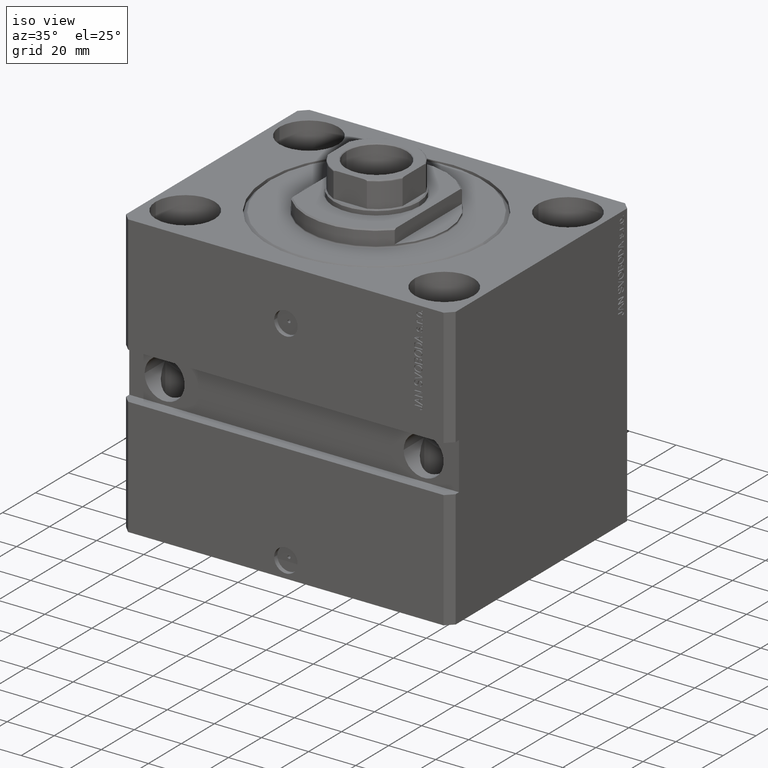
[diagram: clean part render]
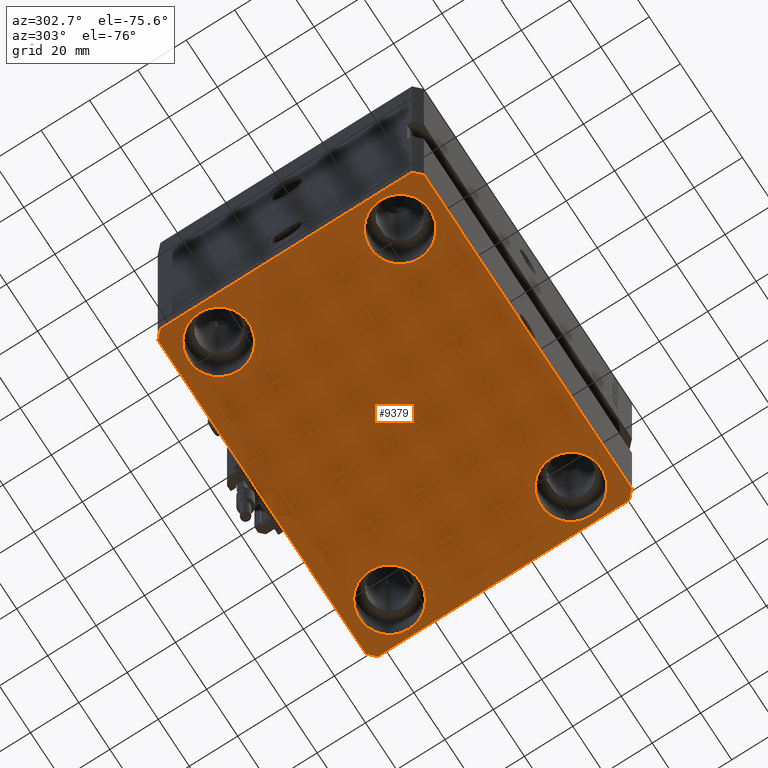
[diagram: tour spotlight — one face highlighted and labeled with its STEP entity id]
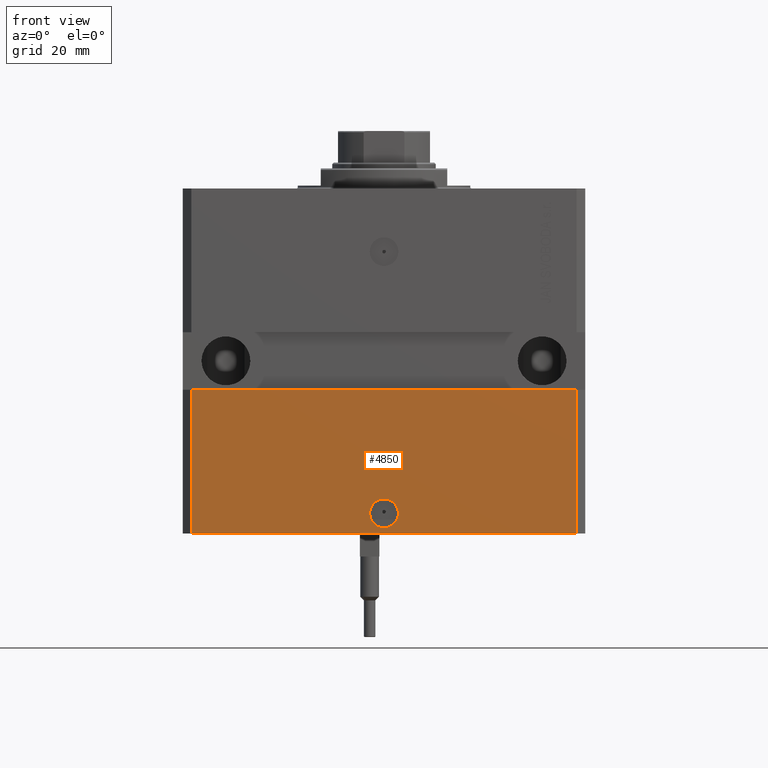
[diagram: tour spotlight — one face highlighted and labeled with its STEP entity id]
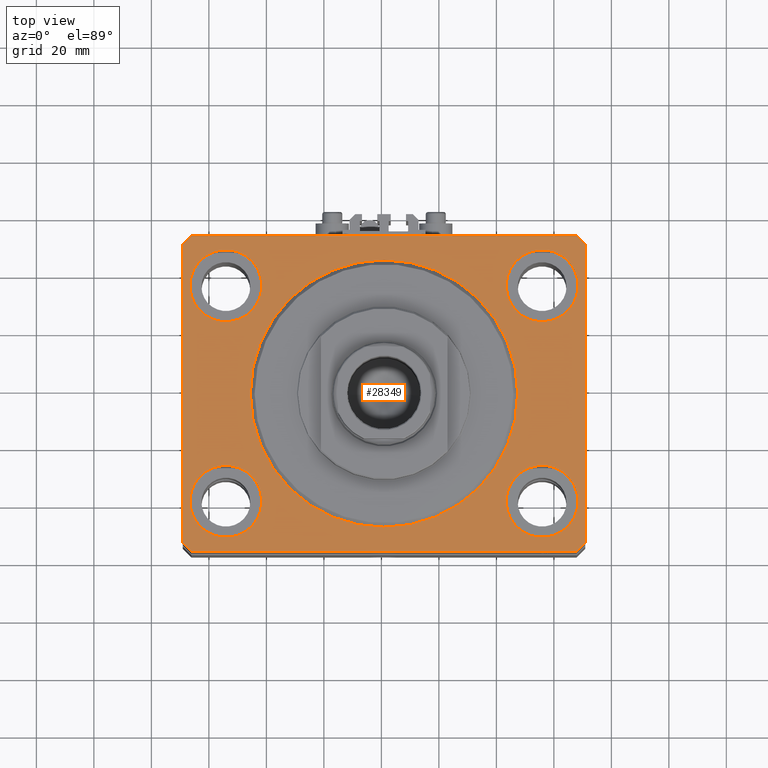
[diagram: tour spotlight — one face highlighted and labeled with its STEP entity id]
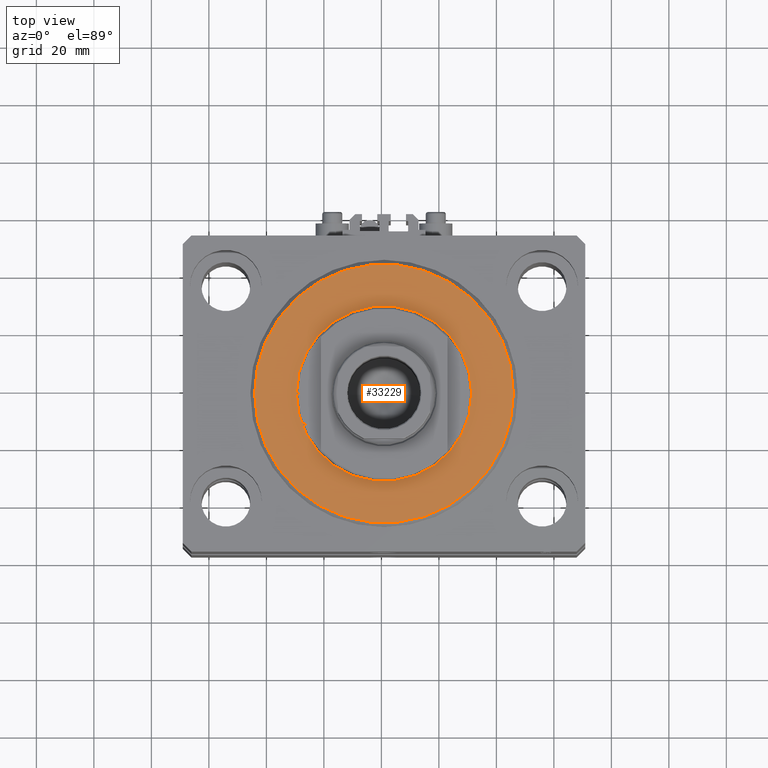
[diagram: tour spotlight — one face highlighted and labeled with its STEP entity id]
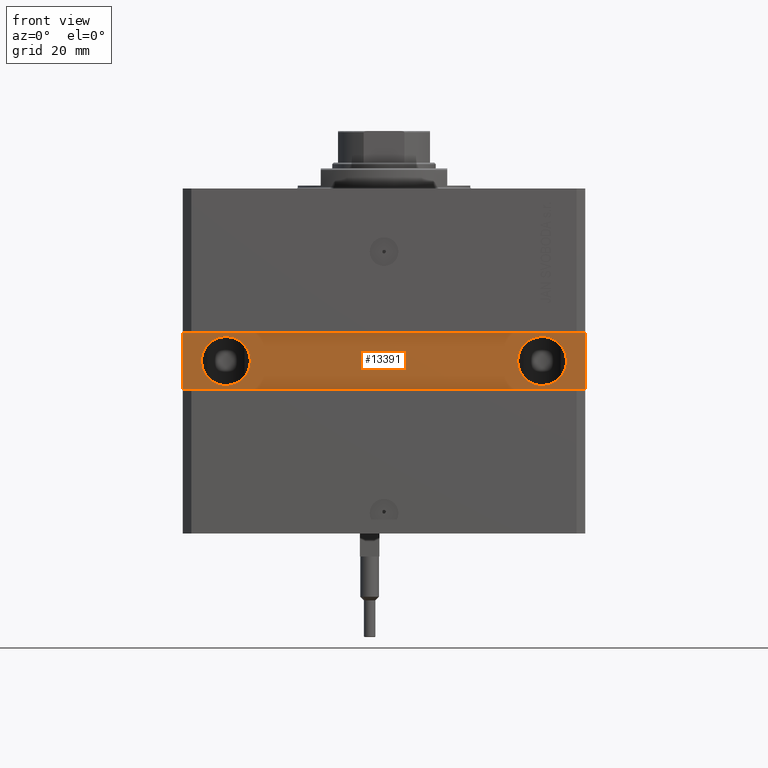
[diagram: tour spotlight — one face highlighted and labeled with its STEP entity id]
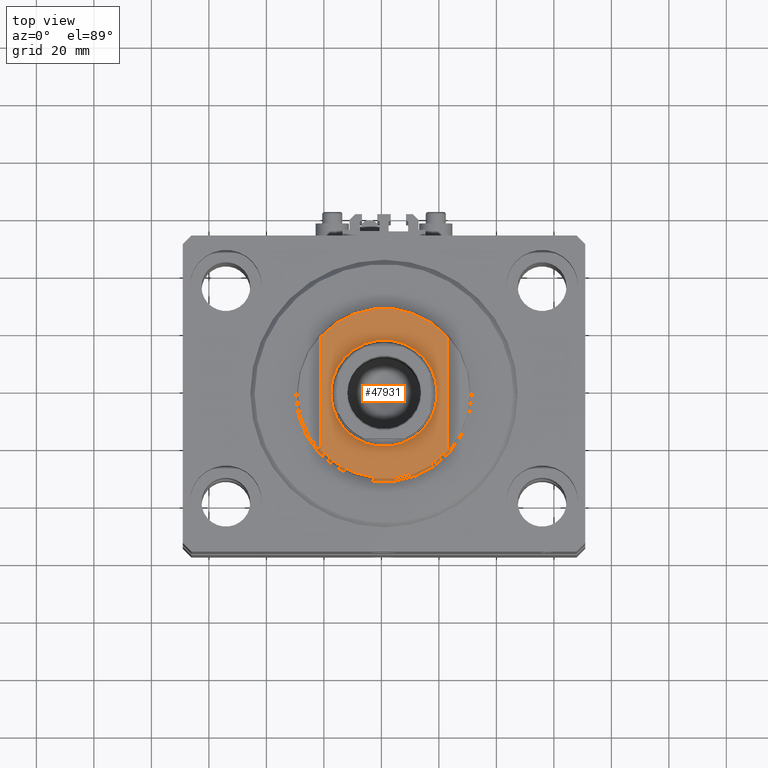
[diagram: tour spotlight — one face highlighted and labeled with its STEP entity id]
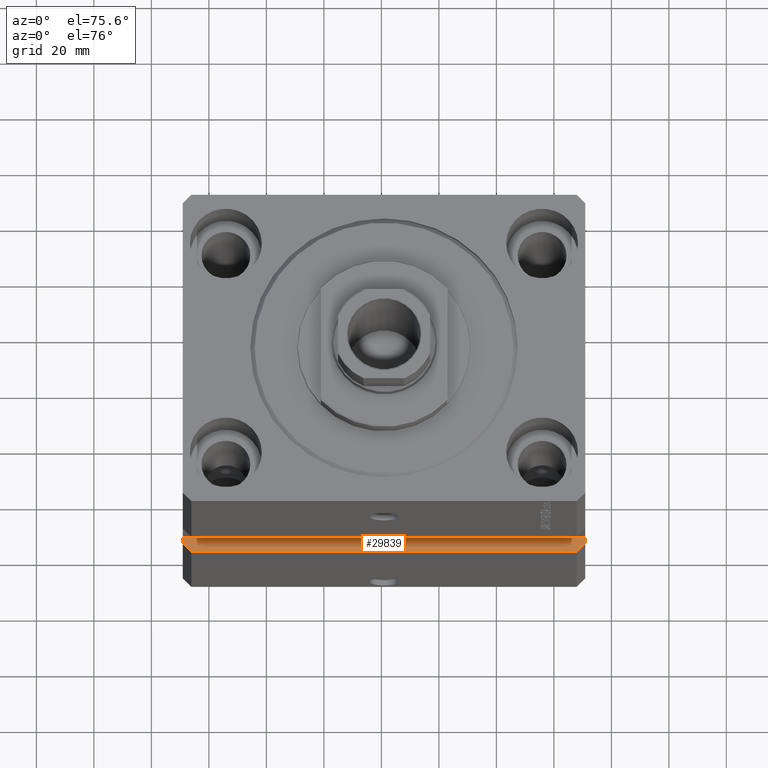
[diagram: tour spotlight — one face highlighted and labeled with its STEP entity id]
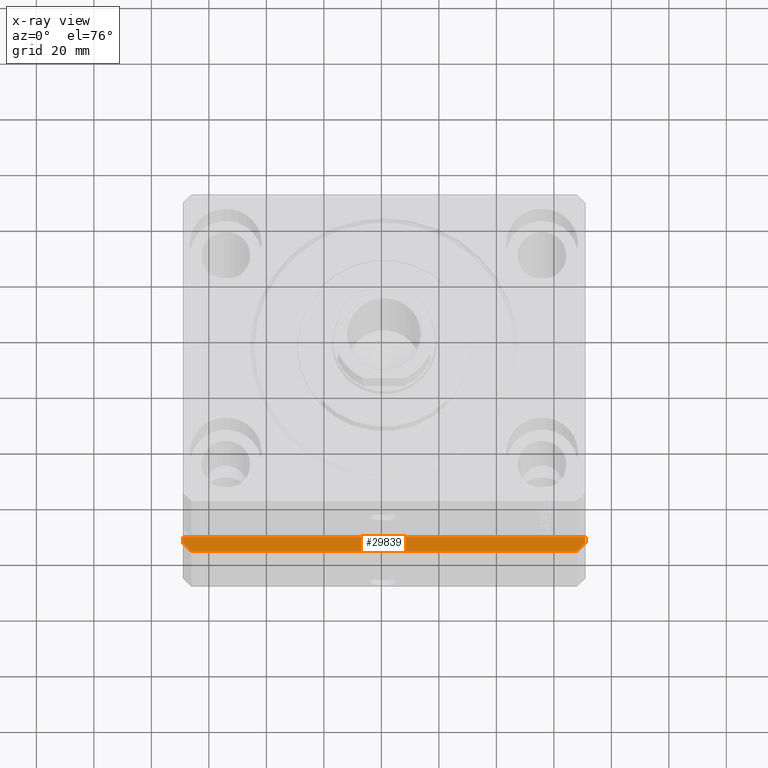
[diagram: x-ray of the same camera — body ghosted, this tour face saturated]
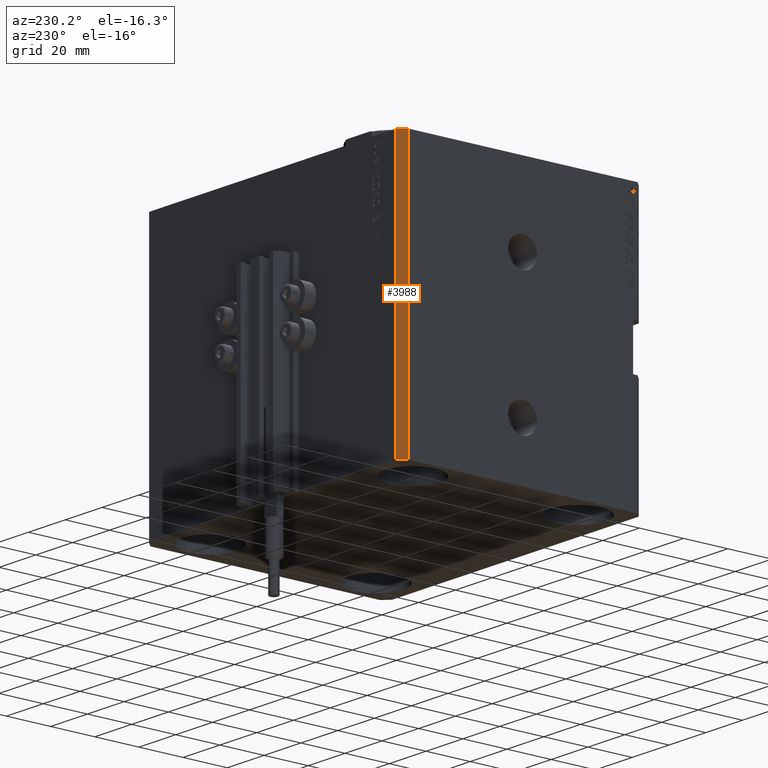
[diagram: tour spotlight — one face highlighted and labeled with its STEP entity id]
A machine part: a face-by-face anatomy tour. The part has 1138 B-rep faces; the first image is the clean iso view, then the 8 largest visible faces are spotlighted one at a time (largest first), each with its STEP entity span.

Face 1 — auxiliary view, entity #9379. In plain terms, the highlighted planar face has unit normal (0, 0, 1).
Definition (entity closure, byte-faithful):
#172 = VECTOR ( 'NONE', #4868, 1000.000000000000114 ) ;
#248 = VERTEX_POINT ( 'NONE', #38725 ) ;
#408 = CARTESIAN_POINT ( 'NONE',  ( 70.00000000000056843, 51.99999999999996447, -120.0000000000000000 ) ) ;
#583 = CARTESIAN_POINT ( 'NONE',  ( -42.50000000000000711, -37.50000000000000711, -120.0000000000000000 ) ) ;
#898 = EDGE_LOOP ( 'NONE', ( #24883, #37441 ) ) ;
#1275 = CARTESIAN_POINT ( 'NONE',  ( -55.00000000000000711, -37.50000000000000711, -120.0000000000000000 ) ) ;
#1327 = AXIS2_PLACEMENT_3D ( 'NONE', #7550, #48682, #45896 ) ;
#1644 = CARTESIAN_POINT ( 'NONE',  ( -67.00000000000001421, -55.00000000000000000, -120.0000000000000000 ) ) ;
#1961 = DIRECTION ( 'NONE',  ( -0.000000000000000000, -0.000000000000000000, 1.000000000000000000 ) ) ;
#2593 = CIRCLE ( 'NONE', #39380, 12.49999999999999645 ) ;
#2693 = VERTEX_POINT ( 'NONE', #24483 ) ;
#3983 = DIRECTION ( 'NONE',  ( -0.000000000000000000, -0.000000000000000000, 1.000000000000000000 ) ) ;
#4868 = DIRECTION ( 'NONE',  ( -0.7071067811865451302, -0.7071067811865500152, 0.000000000000000000 ) ) ;
#4926 = EDGE_CURVE ( 'NONE', #39058, #13992, #36019, .T. ) ;
#5418 = DIRECTION ( 'NONE',  ( 1.000000000000000000, 1.553483709829976241E-16, 0.000000000000000000 ) ) ;
#5425 = CARTESIAN_POINT ( 'NONE',  ( 67.50000000000000000, -37.50000000000000711, -120.0000000000000000 ) ) ;
#5796 = ORIENTED_EDGE ( 'NONE', *, *, #40280, .F. ) ;
#6026 = CARTESIAN_POINT ( 'NONE',  ( 0.000000000000000000, 0.000000000000000000, -120.0000000000000000 ) ) ;
#6046 = CARTESIAN_POINT ( 'NONE',  ( -69.99999999999998579, 51.99999999999999289, -120.0000000000000000 ) ) ;
#6052 = LINE ( 'NONE', #44413, #42191 ) ;
#6106 = AXIS2_PLACEMENT_3D ( 'NONE', #32794, #1961, #17240 ) ;
#6280 = DIRECTION ( 'NONE',  ( 1.000000000000000000, 0.000000000000000000, -0.000000000000000000 ) ) ;
#6496 = CARTESIAN_POINT ( 'NONE',  ( 70.00000000000000000, -51.99999999999999289, -120.0000000000000000 ) ) ;
#7409 = LINE ( 'NONE', #22685, #37923 ) ;
#7550 = CARTESIAN_POINT ( 'NONE',  ( -55.00000000000000711, 37.49999999999999289, -120.0000000000000000 ) ) ;
#7582 = CARTESIAN_POINT ( 'NONE',  ( 67.00000000000001421, -54.99999999999997868, -120.0000000000000000 ) ) ;
#8060 = VERTEX_POINT ( 'NONE', #47550 ) ;
#8421 = ORIENTED_EDGE ( 'NONE', *, *, #34640, .F. ) ;
#9246 = CIRCLE ( 'NONE', #45280, 12.49999999999999645 ) ;
#9279 = DIRECTION ( 'NONE',  ( 0.000000000000000000, 0.000000000000000000, 1.000000000000000000 ) ) ;
#9379 = ADVANCED_FACE ( 'NONE', ( #24576, #36603, #24813, #40100, #43642 ), #40354, .F. ) ;
#9786 = VECTOR ( 'NONE', #26463, 1000.000000000000000 ) ;
#9812 = DIRECTION ( 'NONE',  ( 1.000000000000000000, 0.000000000000000000, 0.000000000000000000 ) ) ;
#10145 = EDGE_CURVE ( 'NONE', #30268, #25835, #2593, .T. ) ;
#10293 = CARTESIAN_POINT ( 'NONE',  ( -55.00000000000000711, -37.50000000000000711, -120.0000000000000000 ) ) ;
#10642 = LINE ( 'NONE', #18649, #45106 ) ;
#10853 = VERTEX_POINT ( 'NONE', #5425 ) ;
#11026 = EDGE_CURVE ( 'NONE', #32988, #15786, #41262, .T. ) ;
#11245 = CARTESIAN_POINT ( 'NONE',  ( -55.00000000000000711, 37.49999999999999289, -120.0000000000000000 ) ) ;
#11494 = EDGE_CURVE ( 'NONE', #25751, #248, #10642, .T. ) ;
#11525 = ORIENTED_EDGE ( 'NONE', *, *, #36607, .T. ) ;
#12206 = AXIS2_PLACEMENT_3D ( 'NONE', #35395, #44173, #9812 ) ;
#12223 = DIRECTION ( 'NONE',  ( 1.000000000000000000, 0.000000000000000000, 0.000000000000000000 ) ) ;
#12802 = CIRCLE ( 'NONE', #33638, 12.49999999999999645 ) ;
#13457 = EDGE_CURVE ( 'NONE', #248, #24197, #21178, .T. ) ;
#13781 = EDGE_CURVE ( 'NONE', #25835, #30268, #14701, .T. ) ;
#13992 = VERTEX_POINT ( 'NONE', #19734 ) ;
#14250 = LINE ( 'NONE', #6496, #35761 ) ;
#14297 = DIRECTION ( 'NONE',  ( 1.000000000000000000, 0.000000000000000000, 0.000000000000000000 ) ) ;
#14701 = CIRCLE ( 'NONE', #48348, 12.49999999999999645 ) ;
#14796 = DIRECTION ( 'NONE',  ( 1.000000000000000000, 0.000000000000000000, 0.000000000000000000 ) ) ;
#15499 = EDGE_LOOP ( 'NONE', ( #46422, #11525 ) ) ;
#15786 = VERTEX_POINT ( 'NONE', #30316 ) ;
#15873 = CARTESIAN_POINT ( 'NONE',  ( 42.50000000000000711, 37.50000000000002132, -120.0000000000000000 ) ) ;
#15983 = DIRECTION ( 'NONE',  ( -0.000000000000000000, -0.000000000000000000, 1.000000000000000000 ) ) ;
#16832 = EDGE_CURVE ( 'NONE', #34563, #25751, #7409, .T. ) ;
#17240 = DIRECTION ( 'NONE',  ( 1.000000000000000000, 0.000000000000000000, 0.000000000000000000 ) ) ;
#17319 = DIRECTION ( 'NONE',  ( -1.000000000000000000, -1.553483709829969339E-16, 0.000000000000000000 ) ) ;
#17641 = VERTEX_POINT ( 'NONE', #18198 ) ;
#17884 = VECTOR ( 'NONE', #5418, 1000.000000000000000 ) ;
#18198 = CARTESIAN_POINT ( 'NONE',  ( 70.00000000000000000, -51.99999999999999289, -120.0000000000000000 ) ) ;
#18360 = CARTESIAN_POINT ( 'NONE',  ( 67.00000000000001421, -54.99999999999997868, -120.0000000000000000 ) ) ;
#18373 = EDGE_LOOP ( 'NONE', ( #43016, #27181 ) ) ;
#18649 = CARTESIAN_POINT ( 'NONE',  ( -70.00000000000001421, -51.99999999999999289, -120.0000000000000000 ) ) ;
#18826 = CARTESIAN_POINT ( 'NONE',  ( -42.50000000000000711, 37.49999999999999289, -120.0000000000000000 ) ) ;
#19100 = CARTESIAN_POINT ( 'NONE',  ( -67.50000000000000000, -37.50000000000000711, -120.0000000000000000 ) ) ;
#19605 = ORIENTED_EDGE ( 'NONE', *, *, #13457, .F. ) ;
#19734 = CARTESIAN_POINT ( 'NONE',  ( 67.50000000000000000, 37.50000000000002132, -120.0000000000000000 ) ) ;
#21178 = LINE ( 'NONE', #1644, #17884 ) ;
#21199 = EDGE_CURVE ( 'NONE', #29407, #46876, #9246, .T. ) ;
#22685 = CARTESIAN_POINT ( 'NONE',  ( -69.99999999999998579, 51.99999999999999289, -120.0000000000000000 ) ) ;
#22800 = CARTESIAN_POINT ( 'NONE',  ( -67.50000000000000000, 37.49999999999999289, -120.0000000000000000 ) ) ;
#23579 = EDGE_CURVE ( 'NONE', #8060, #10853, #45382, .T. ) ;
#24088 = DIRECTION ( 'NONE',  ( -0.000000000000000000, -0.000000000000000000, 1.000000000000000000 ) ) ;
#24197 = VERTEX_POINT ( 'NONE', #18360 ) ;
#24333 = EDGE_CURVE ( 'NONE', #17641, #32988, #14250, .T. ) ;
#24368 = ORIENTED_EDGE ( 'NONE', *, *, #16832, .F. ) ;
#24483 = CARTESIAN_POINT ( 'NONE',  ( -67.00000000000000000, 55.00000000000000000, -120.0000000000000000 ) ) ;
#24576 = FACE_BOUND ( 'NONE', #18373, .T. ) ;
#24813 = FACE_BOUND ( 'NONE', #15499, .T. ) ;
#24824 = DIRECTION ( 'NONE',  ( -0.000000000000000000, -0.000000000000000000, 1.000000000000000000 ) ) ;
#24883 = ORIENTED_EDGE ( 'NONE', *, *, #21199, .T. ) ;
#25133 = EDGE_CURVE ( 'NONE', #15786, #2693, #6052, .T. ) ;
#25349 = CIRCLE ( 'NONE', #1327, 12.49999999999999645 ) ;
#25751 = VERTEX_POINT ( 'NONE', #37464 ) ;
#25835 = VERTEX_POINT ( 'NONE', #583 ) ;
#26463 = DIRECTION ( 'NONE',  ( -0.7071067811865344721, 0.7071067811865606734, 0.000000000000000000 ) ) ;
#26547 = DIRECTION ( 'NONE',  ( 1.000000000000000000, 0.000000000000000000, 0.000000000000000000 ) ) ;
#27181 = ORIENTED_EDGE ( 'NONE', *, *, #13781, .T. ) ;
#28208 = ORIENTED_EDGE ( 'NONE', *, *, #25133, .F. ) ;
#29152 = VECTOR ( 'NONE', #41183, 1000.000000000000114 ) ;
#29407 = VERTEX_POINT ( 'NONE', #22800 ) ;
#29824 = EDGE_LOOP ( 'NONE', ( #28208, #39431, #44705, #5796, #19605, #36669, #24368, #8421 ) ) ;
#29882 = CIRCLE ( 'NONE', #12206, 12.49999999999999645 ) ;
#30268 = VERTEX_POINT ( 'NONE', #19100 ) ;
#30316 = CARTESIAN_POINT ( 'NONE',  ( 67.00000000000061107, 55.00000000000002132, -120.0000000000000000 ) ) ;
#30570 = EDGE_CURVE ( 'NONE', #10853, #8060, #12802, .T. ) ;
#31442 = CARTESIAN_POINT ( 'NONE',  ( -67.00000000000000000, 55.00000000000000000, -120.0000000000000000 ) ) ;
#32121 = AXIS2_PLACEMENT_3D ( 'NONE', #6026, #9279, #6280 ) ;
#32794 = CARTESIAN_POINT ( 'NONE',  ( 55.00000000000000711, -37.50000000000000711, -120.0000000000000000 ) ) ;
#32845 = AXIS2_PLACEMENT_3D ( 'NONE', #35054, #15983, #12223 ) ;
#32988 = VERTEX_POINT ( 'NONE', #408 ) ;
#33638 = AXIS2_PLACEMENT_3D ( 'NONE', #37118, #24824, #14297 ) ;
#33658 = LINE ( 'NONE', #7582, #29152 ) ;
#33737 = CARTESIAN_POINT ( 'NONE',  ( 70.00000000000056843, 51.99999999999996447, -120.0000000000000000 ) ) ;
#33956 = DIRECTION ( 'NONE',  ( 0.7071067811865466846, -0.7071067811865483499, 0.000000000000000000 ) ) ;
#34229 = DIRECTION ( 'NONE',  ( -2.668805347656626678E-16, -1.000000000000000000, 0.000000000000000000 ) ) ;
#34563 = VERTEX_POINT ( 'NONE', #6046 ) ;
#34640 = EDGE_CURVE ( 'NONE', #2693, #34563, #35194, .T. ) ;
#34884 = DIRECTION ( 'NONE',  ( 1.000000000000000000, 0.000000000000000000, 0.000000000000000000 ) ) ;
#35054 = CARTESIAN_POINT ( 'NONE',  ( 55.00000000000000711, 37.50000000000002132, -120.0000000000000000 ) ) ;
#35166 = EDGE_LOOP ( 'NONE', ( #47469, #47267 ) ) ;
#35194 = LINE ( 'NONE', #31442, #172 ) ;
#35395 = CARTESIAN_POINT ( 'NONE',  ( 55.00000000000000711, 37.50000000000002132, -120.0000000000000000 ) ) ;
#35761 = VECTOR ( 'NONE', #48092, 1000.000000000000000 ) ;
#36019 = CIRCLE ( 'NONE', #32845, 12.49999999999999645 ) ;
#36603 = FACE_BOUND ( 'NONE', #35166, .T. ) ;
#36607 = EDGE_CURVE ( 'NONE', #13992, #39058, #29882, .T. ) ;
#36669 = ORIENTED_EDGE ( 'NONE', *, *, #11494, .F. ) ;
#37118 = CARTESIAN_POINT ( 'NONE',  ( 55.00000000000000711, -37.50000000000000711, -120.0000000000000000 ) ) ;
#37441 = ORIENTED_EDGE ( 'NONE', *, *, #49473, .T. ) ;
#37464 = CARTESIAN_POINT ( 'NONE',  ( -70.00000000000001421, -51.99999999999999289, -120.0000000000000000 ) ) ;
#37923 = VECTOR ( 'NONE', #34229, 1000.000000000000000 ) ;
#38725 = CARTESIAN_POINT ( 'NONE',  ( -67.00000000000001421, -55.00000000000000000, -120.0000000000000000 ) ) ;
#39058 = VERTEX_POINT ( 'NONE', #15873 ) ;
#39380 = AXIS2_PLACEMENT_3D ( 'NONE', #1275, #24088, #34884 ) ;
#39431 = ORIENTED_EDGE ( 'NONE', *, *, #11026, .F. ) ;
#40100 = FACE_BOUND ( 'NONE', #898, .T. ) ;
#40280 = EDGE_CURVE ( 'NONE', #24197, #17641, #33658, .T. ) ;
#40354 = PLANE ( 'NONE',  #32121 ) ;
#41183 = DIRECTION ( 'NONE',  ( 0.7071067811865474617, 0.7071067811865474617, 0.000000000000000000 ) ) ;
#41262 = LINE ( 'NONE', #33737, #9786 ) ;
#42191 = VECTOR ( 'NONE', #17319, 1000.000000000000000 ) ;
#43016 = ORIENTED_EDGE ( 'NONE', *, *, #10145, .T. ) ;
#43642 = FACE_OUTER_BOUND ( 'NONE', #29824, .T. ) ;
#44173 = DIRECTION ( 'NONE',  ( -0.000000000000000000, -0.000000000000000000, 1.000000000000000000 ) ) ;
#44413 = CARTESIAN_POINT ( 'NONE',  ( 67.00000000000061107, 55.00000000000002132, -120.0000000000000000 ) ) ;
#44705 = ORIENTED_EDGE ( 'NONE', *, *, #24333, .F. ) ;
#45106 = VECTOR ( 'NONE', #33956, 1000.000000000000000 ) ;
#45280 = AXIS2_PLACEMENT_3D ( 'NONE', #11245, #3983, #26547 ) ;
#45382 = CIRCLE ( 'NONE', #6106, 12.49999999999999645 ) ;
#45896 = DIRECTION ( 'NONE',  ( 1.000000000000000000, 0.000000000000000000, 0.000000000000000000 ) ) ;
#46422 = ORIENTED_EDGE ( 'NONE', *, *, #4926, .T. ) ;
#46876 = VERTEX_POINT ( 'NONE', #18826 ) ;
#47267 = ORIENTED_EDGE ( 'NONE', *, *, #30570, .T. ) ;
#47469 = ORIENTED_EDGE ( 'NONE', *, *, #23579, .T. ) ;
#47550 = CARTESIAN_POINT ( 'NONE',  ( 42.50000000000000711, -37.50000000000000711, -120.0000000000000000 ) ) ;
#48092 = DIRECTION ( 'NONE',  ( 5.337610695313255329E-15, 1.000000000000000000, 0.000000000000000000 ) ) ;
#48348 = AXIS2_PLACEMENT_3D ( 'NONE', #10293, #49158, #14796 ) ;
#48682 = DIRECTION ( 'NONE',  ( -0.000000000000000000, -0.000000000000000000, 1.000000000000000000 ) ) ;
#49158 = DIRECTION ( 'NONE',  ( -0.000000000000000000, -0.000000000000000000, 1.000000000000000000 ) ) ;
#49473 = EDGE_CURVE ( 'NONE', #46876, #29407, #25349, .T. ) ;

Face 2 — front view, entity #4850. In plain terms, the highlighted planar face has unit normal (0, -1, 0).
Definition (entity closure, byte-faithful):
#248 = VERTEX_POINT ( 'NONE', #38725 ) ;
#870 = CIRCLE ( 'NONE', #19300, 5.000000000000006217 ) ;
#1644 = CARTESIAN_POINT ( 'NONE',  ( -67.00000000000001421, -55.00000000000000000, -120.0000000000000000 ) ) ;
#2060 = PLANE ( 'NONE',  #19211 ) ;
#2925 = CIRCLE ( 'NONE', #38114, 5.000000000000006217 ) ;
#4850 = ADVANCED_FACE ( 'NONE', ( #44177, #34080 ), #2060, .T. ) ;
#5298 = CARTESIAN_POINT ( 'NONE',  ( -70.00000000000001421, -54.99999999999999289, -70.00000000000000000 ) ) ;
#5418 = DIRECTION ( 'NONE',  ( 1.000000000000000000, 1.553483709829976241E-16, 0.000000000000000000 ) ) ;
#5902 = DIRECTION ( 'NONE',  ( 1.000000000000000000, 0.000000000000000000, 0.000000000000000000 ) ) ;
#5949 = DIRECTION ( 'NONE',  ( 1.176083712526788232E-16, -1.000000000000000000, 0.000000000000000000 ) ) ;
#6078 = ORIENTED_EDGE ( 'NONE', *, *, #13735, .F. ) ;
#6205 = CARTESIAN_POINT ( 'NONE',  ( 8.544160404064867231E-15, -54.99999999999998579, -112.9999999999999858 ) ) ;
#8437 = LINE ( 'NONE', #46532, #18765 ) ;
#12601 = VERTEX_POINT ( 'NONE', #20373 ) ;
#13154 = DIRECTION ( 'NONE',  ( 0.000000000000000000, 0.000000000000000000, 1.000000000000000000 ) ) ;
#13457 = EDGE_CURVE ( 'NONE', #248, #24197, #21178, .T. ) ;
#13570 = DIRECTION ( 'NONE',  ( 1.553483709829976241E-16, -1.000000000000000000, 0.000000000000000000 ) ) ;
#13735 = EDGE_CURVE ( 'NONE', #12601, #45045, #29357, .T. ) ;
#14081 = DIRECTION ( 'NONE',  ( 1.000000000000000000, 1.553483709829976241E-16, 0.000000000000000000 ) ) ;
#15424 = CARTESIAN_POINT ( 'NONE',  ( 5.000000000000015099, -54.99999999999998579, -112.9999999999999858 ) ) ;
#17695 = CARTESIAN_POINT ( 'NONE',  ( 67.00000000000001421, -54.99999999999997868, -70.00000000000000000 ) ) ;
#17884 = VECTOR ( 'NONE', #5418, 1000.000000000000000 ) ;
#18360 = CARTESIAN_POINT ( 'NONE',  ( 67.00000000000001421, -54.99999999999997868, -120.0000000000000000 ) ) ;
#18765 = VECTOR ( 'NONE', #13154, 1000.000000000000000 ) ;
#19211 = AXIS2_PLACEMENT_3D ( 'NONE', #47928, #13570, #14081 ) ;
#19300 = AXIS2_PLACEMENT_3D ( 'NONE', #6205, #5949, #29524 ) ;
#20373 = CARTESIAN_POINT ( 'NONE',  ( -67.00000000000002842, -54.99999999999999289, -70.00000000000000000 ) ) ;
#20879 = ORIENTED_EDGE ( 'NONE', *, *, #43750, .F. ) ;
#21178 = LINE ( 'NONE', #1644, #17884 ) ;
#22453 = ORIENTED_EDGE ( 'NONE', *, *, #22816, .F. ) ;
#22743 = VECTOR ( 'NONE', #41257, 1000.000000000000000 ) ;
#22816 = EDGE_CURVE ( 'NONE', #30046, #35286, #2925, .T. ) ;
#24197 = VERTEX_POINT ( 'NONE', #18360 ) ;
#28712 = CARTESIAN_POINT ( 'NONE',  ( 8.544160404064867231E-15, -54.99999999999998579, -112.9999999999999858 ) ) ;
#28718 = LINE ( 'NONE', #33491, #22743 ) ;
#29357 = LINE ( 'NONE', #5298, #42756 ) ;
#29524 = DIRECTION ( 'NONE',  ( 1.000000000000000000, 0.000000000000000000, 0.000000000000000000 ) ) ;
#30046 = VERTEX_POINT ( 'NONE', #42239 ) ;
#31451 = ORIENTED_EDGE ( 'NONE', *, *, #13457, .T. ) ;
#31872 = ORIENTED_EDGE ( 'NONE', *, *, #39722, .T. ) ;
#32942 = EDGE_CURVE ( 'NONE', #35286, #30046, #870, .T. ) ;
#33491 = CARTESIAN_POINT ( 'NONE',  ( -67.00000000000001421, -55.00000000000000000, -120.0000000000000000 ) ) ;
#34080 = FACE_OUTER_BOUND ( 'NONE', #41758, .T. ) ;
#34723 = ORIENTED_EDGE ( 'NONE', *, *, #32942, .F. ) ;
#35286 = VERTEX_POINT ( 'NONE', #15424 ) ;
#38114 = AXIS2_PLACEMENT_3D ( 'NONE', #28712, #40233, #5902 ) ;
#38725 = CARTESIAN_POINT ( 'NONE',  ( -67.00000000000001421, -55.00000000000000000, -120.0000000000000000 ) ) ;
#39722 = EDGE_CURVE ( 'NONE', #24197, #45045, #8437, .T. ) ;
#40233 = DIRECTION ( 'NONE',  ( 1.176083712526788232E-16, -1.000000000000000000, 0.000000000000000000 ) ) ;
#40364 = DIRECTION ( 'NONE',  ( 1.000000000000000000, 9.912705577010323084E-17, 0.000000000000000000 ) ) ;
#41257 = DIRECTION ( 'NONE',  ( 0.000000000000000000, 0.000000000000000000, 1.000000000000000000 ) ) ;
#41758 = EDGE_LOOP ( 'NONE', ( #6078, #20879, #31451, #31872 ) ) ;
#42239 = CARTESIAN_POINT ( 'NONE',  ( -4.999999999999997335, -54.99999999999998579, -112.9999999999999858 ) ) ;
#42756 = VECTOR ( 'NONE', #40364, 1000.000000000000000 ) ;
#43750 = EDGE_CURVE ( 'NONE', #248, #12601, #28718, .T. ) ;
#44177 = FACE_BOUND ( 'NONE', #49049, .T. ) ;
#45045 = VERTEX_POINT ( 'NONE', #17695 ) ;
#46532 = CARTESIAN_POINT ( 'NONE',  ( 67.00000000000001421, -54.99999999999997868, -120.0000000000000000 ) ) ;
#47928 = CARTESIAN_POINT ( 'NONE',  ( -67.00000000000001421, -55.00000000000000000, -120.0000000000000000 ) ) ;
#49049 = EDGE_LOOP ( 'NONE', ( #34723, #22453 ) ) ;

Face 3 — top view, entity #28349. In plain terms, the highlighted planar face has unit normal (0, 0, 1).
Definition (entity closure, byte-faithful):
#42 = CARTESIAN_POINT ( 'NONE',  ( 42.50000000000000711, -37.50000000000000711, 0.000000000000000000 ) ) ;
#1100 = VERTEX_POINT ( 'NONE', #6421 ) ;
#1221 = VECTOR ( 'NONE', #35644, 1000.000000000000000 ) ;
#1756 = CIRCLE ( 'NONE', #22569, 46.50000000000000000 ) ;
#1844 = CARTESIAN_POINT ( 'NONE',  ( 55.00000000000000711, 37.50000000000002132, 0.000000000000000000 ) ) ;
#2388 = EDGE_CURVE ( 'NONE', #2420, #20501, #23128, .T. ) ;
#2420 = VERTEX_POINT ( 'NONE', #12313 ) ;
#2425 = DIRECTION ( 'NONE',  ( 0.000000000000000000, 0.000000000000000000, 1.000000000000000000 ) ) ;
#3443 = CARTESIAN_POINT ( 'NONE',  ( -67.50000000000000000, 37.49999999999999289, 0.000000000000000000 ) ) ;
#3699 = ORIENTED_EDGE ( 'NONE', *, *, #39879, .F. ) ;
#3845 = DIRECTION ( 'NONE',  ( -0.7071067811865451302, -0.7071067811865500152, 0.000000000000000000 ) ) ;
#4110 = CARTESIAN_POINT ( 'NONE',  ( -67.00000000000001421, -55.00000000000000000, 0.000000000000000000 ) ) ;
#4113 = EDGE_LOOP ( 'NONE', ( #10967, #27528 ) ) ;
#4990 = CIRCLE ( 'NONE', #28214, 12.49999999999999645 ) ;
#5043 = DIRECTION ( 'NONE',  ( 0.000000000000000000, 0.000000000000000000, 1.000000000000000000 ) ) ;
#5070 = CARTESIAN_POINT ( 'NONE',  ( 70.00000000000056843, 51.99999999999996447, 0.000000000000000000 ) ) ;
#5209 = ORIENTED_EDGE ( 'NONE', *, *, #48405, .T. ) ;
#5518 = CARTESIAN_POINT ( 'NONE',  ( 0.000000000000000000, 0.000000000000000000, 0.000000000000000000 ) ) ;
#5583 = EDGE_LOOP ( 'NONE', ( #40699, #25503 ) ) ;
#5782 = VERTEX_POINT ( 'NONE', #42 ) ;
#6127 = EDGE_CURVE ( 'NONE', #7745, #18080, #26340, .T. ) ;
#6421 = CARTESIAN_POINT ( 'NONE',  ( 46.50000000000000000, 0.000000000000000000, 0.000000000000000000 ) ) ;
#6878 = ORIENTED_EDGE ( 'NONE', *, *, #16055, .F. ) ;
#7290 = CARTESIAN_POINT ( 'NONE',  ( 67.00000000000001421, -54.99999999999997868, 0.000000000000000000 ) ) ;
#7697 = DIRECTION ( 'NONE',  ( 0.000000000000000000, 0.000000000000000000, 1.000000000000000000 ) ) ;
#7745 = VERTEX_POINT ( 'NONE', #26176 ) ;
#8503 = DIRECTION ( 'NONE',  ( 0.000000000000000000, 0.000000000000000000, 1.000000000000000000 ) ) ;
#8794 = CARTESIAN_POINT ( 'NONE',  ( -55.00000000000000711, 37.49999999999999289, 0.000000000000000000 ) ) ;
#8858 = EDGE_CURVE ( 'NONE', #34309, #5782, #8937, .T. ) ;
#8937 = CIRCLE ( 'NONE', #33762, 12.49999999999999645 ) ;
#9271 = FACE_BOUND ( 'NONE', #43208, .T. ) ;
#9296 = VECTOR ( 'NONE', #35618, 1000.000000000000000 ) ;
#9483 = AXIS2_PLACEMENT_3D ( 'NONE', #5518, #36084, #47628 ) ;
#10420 = EDGE_CURVE ( 'NONE', #46220, #14258, #26596, .T. ) ;
#10967 = ORIENTED_EDGE ( 'NONE', *, *, #8858, .F. ) ;
#11386 = DIRECTION ( 'NONE',  ( 1.000000000000000000, 0.000000000000000000, 0.000000000000000000 ) ) ;
#12102 = VECTOR ( 'NONE', #12103, 1000.000000000000000 ) ;
#12103 = DIRECTION ( 'NONE',  ( 1.000000000000000000, 1.553483709829976241E-16, 0.000000000000000000 ) ) ;
#12313 = CARTESIAN_POINT ( 'NONE',  ( -67.00000000000000000, 55.00000000000000000, 0.000000000000000000 ) ) ;
#12386 = DIRECTION ( 'NONE',  ( 1.000000000000000000, 0.000000000000000000, 0.000000000000000000 ) ) ;
#12552 = EDGE_CURVE ( 'NONE', #20501, #20338, #35176, .T. ) ;
#13617 = EDGE_CURVE ( 'NONE', #32980, #30439, #16296, .T. ) ;
#13648 = VECTOR ( 'NONE', #30342, 1000.000000000000114 ) ;
#13943 = AXIS2_PLACEMENT_3D ( 'NONE', #29868, #42139, #30595 ) ;
#14258 = VERTEX_POINT ( 'NONE', #41028 ) ;
#14865 = CARTESIAN_POINT ( 'NONE',  ( 70.00000000000000000, -51.99999999999999289, 0.000000000000000000 ) ) ;
#15521 = AXIS2_PLACEMENT_3D ( 'NONE', #8794, #5043, #46905 ) ;
#16055 = EDGE_CURVE ( 'NONE', #18218, #48150, #41235, .T. ) ;
#16102 = LINE ( 'NONE', #4110, #12102 ) ;
#16229 = DIRECTION ( 'NONE',  ( 1.000000000000000000, 0.000000000000000000, 0.000000000000000000 ) ) ;
#16296 = CIRCLE ( 'NONE', #15521, 12.49999999999999645 ) ;
#16339 = CARTESIAN_POINT ( 'NONE',  ( -69.99999999999998579, 51.99999999999999289, 0.000000000000000000 ) ) ;
#16544 = FACE_BOUND ( 'NONE', #25808, .T. ) ;
#16674 = CARTESIAN_POINT ( 'NONE',  ( 70.00000000000056843, 51.99999999999996447, 0.000000000000000000 ) ) ;
#16782 = FACE_BOUND ( 'NONE', #4113, .T. ) ;
#17289 = CARTESIAN_POINT ( 'NONE',  ( -70.00000000000001421, -51.99999999999999289, 0.000000000000000000 ) ) ;
#17315 = CARTESIAN_POINT ( 'NONE',  ( -42.50000000000000711, -37.50000000000000711, 0.000000000000000000 ) ) ;
#17850 = ORIENTED_EDGE ( 'NONE', *, *, #45245, .F. ) ;
#17953 = DIRECTION ( 'NONE',  ( 1.000000000000000000, 0.000000000000000000, 0.000000000000000000 ) ) ;
#18080 = VERTEX_POINT ( 'NONE', #14865 ) ;
#18218 = VERTEX_POINT ( 'NONE', #17315 ) ;
#18309 = ORIENTED_EDGE ( 'NONE', *, *, #12552, .T. ) ;
#18322 = EDGE_CURVE ( 'NONE', #5782, #34309, #33959, .T. ) ;
#18468 = CARTESIAN_POINT ( 'NONE',  ( -55.00000000000000711, -37.50000000000000711, 0.000000000000000000 ) ) ;
#18484 = CIRCLE ( 'NONE', #36924, 46.50000000000000000 ) ;
#19606 = CIRCLE ( 'NONE', #26832, 12.49999999999999645 ) ;
#20121 = CARTESIAN_POINT ( 'NONE',  ( -69.99999999999998579, 51.99999999999999289, 0.000000000000000000 ) ) ;
#20123 = ORIENTED_EDGE ( 'NONE', *, *, #34326, .F. ) ;
#20338 = VERTEX_POINT ( 'NONE', #41216 ) ;
#20501 = VERTEX_POINT ( 'NONE', #16339 ) ;
#20652 = VECTOR ( 'NONE', #39430, 1000.000000000000000 ) ;
#20782 = FACE_BOUND ( 'NONE', #27591, .T. ) ;
#21668 = VERTEX_POINT ( 'NONE', #36388 ) ;
#22264 = VERTEX_POINT ( 'NONE', #28272 ) ;
#22458 = CARTESIAN_POINT ( 'NONE',  ( -55.00000000000000711, 37.49999999999999289, 0.000000000000000000 ) ) ;
#22569 = AXIS2_PLACEMENT_3D ( 'NONE', #33985, #33740, #37499 ) ;
#22794 = AXIS2_PLACEMENT_3D ( 'NONE', #18468, #7697, #45063 ) ;
#23128 = LINE ( 'NONE', #38416, #47263 ) ;
#24553 = VERTEX_POINT ( 'NONE', #28731 ) ;
#24568 = FACE_OUTER_BOUND ( 'NONE', #28357, .T. ) ;
#25503 = ORIENTED_EDGE ( 'NONE', *, *, #13617, .F. ) ;
#25808 = EDGE_LOOP ( 'NONE', ( #6878, #3699 ) ) ;
#26176 = CARTESIAN_POINT ( 'NONE',  ( 67.00000000000001421, -54.99999999999997868, 0.000000000000000000 ) ) ;
#26263 = DIRECTION ( 'NONE',  ( 1.000000000000000000, 0.000000000000000000, 0.000000000000000000 ) ) ;
#26340 = LINE ( 'NONE', #7290, #13648 ) ;
#26596 = CIRCLE ( 'NONE', #29790, 12.49999999999999645 ) ;
#26832 = AXIS2_PLACEMENT_3D ( 'NONE', #1844, #43477, #12386 ) ;
#27001 = DIRECTION ( 'NONE',  ( 0.000000000000000000, 0.000000000000000000, 1.000000000000000000 ) ) ;
#27464 = VERTEX_POINT ( 'NONE', #16674 ) ;
#27528 = ORIENTED_EDGE ( 'NONE', *, *, #18322, .F. ) ;
#27591 = EDGE_LOOP ( 'NONE', ( #28331, #17850 ) ) ;
#27619 = LINE ( 'NONE', #42187, #9296 ) ;
#27779 = DIRECTION ( 'NONE',  ( 0.000000000000000000, 0.000000000000000000, 1.000000000000000000 ) ) ;
#27967 = EDGE_CURVE ( 'NONE', #24553, #2420, #43453, .T. ) ;
#28214 = AXIS2_PLACEMENT_3D ( 'NONE', #22458, #2425, #17953 ) ;
#28272 = CARTESIAN_POINT ( 'NONE',  ( -46.50000000000000000, 5.694607616035192278E-15, 0.000000000000000000 ) ) ;
#28331 = ORIENTED_EDGE ( 'NONE', *, *, #10420, .F. ) ;
#28349 = ADVANCED_FACE ( 'NONE', ( #16544, #16782, #20782, #43629, #9271, #24568 ), #39854, .T. ) ;
#28357 = EDGE_LOOP ( 'NONE', ( #32397, #49461, #18309, #28754, #40139, #28921, #5209, #39693 ) ) ;
#28731 = CARTESIAN_POINT ( 'NONE',  ( 67.00000000000061107, 55.00000000000002132, 0.000000000000000000 ) ) ;
#28754 = ORIENTED_EDGE ( 'NONE', *, *, #39103, .T. ) ;
#28921 = ORIENTED_EDGE ( 'NONE', *, *, #6127, .T. ) ;
#29790 = AXIS2_PLACEMENT_3D ( 'NONE', #43345, #8503, #35078 ) ;
#29868 = CARTESIAN_POINT ( 'NONE',  ( 55.00000000000000711, -37.50000000000000711, 0.000000000000000000 ) ) ;
#30342 = DIRECTION ( 'NONE',  ( 0.7071067811865474617, 0.7071067811865474617, 0.000000000000000000 ) ) ;
#30439 = VERTEX_POINT ( 'NONE', #39375 ) ;
#30595 = DIRECTION ( 'NONE',  ( 1.000000000000000000, 0.000000000000000000, 0.000000000000000000 ) ) ;
#31428 = CARTESIAN_POINT ( 'NONE',  ( 67.00000000000061107, 55.00000000000002132, 0.000000000000000000 ) ) ;
#32322 = VECTOR ( 'NONE', #42706, 1000.000000000000000 ) ;
#32397 = ORIENTED_EDGE ( 'NONE', *, *, #27967, .T. ) ;
#32772 = EDGE_CURVE ( 'NONE', #1100, #22264, #18484, .T. ) ;
#32980 = VERTEX_POINT ( 'NONE', #3443 ) ;
#33483 = EDGE_CURVE ( 'NONE', #21668, #7745, #16102, .T. ) ;
#33740 = DIRECTION ( 'NONE',  ( 0.000000000000000000, 0.000000000000000000, 1.000000000000000000 ) ) ;
#33762 = AXIS2_PLACEMENT_3D ( 'NONE', #34024, #27001, #26263 ) ;
#33958 = CARTESIAN_POINT ( 'NONE',  ( 67.50000000000000000, -37.50000000000000711, 0.000000000000000000 ) ) ;
#33959 = CIRCLE ( 'NONE', #13943, 12.49999999999999645 ) ;
#33985 = CARTESIAN_POINT ( 'NONE',  ( 0.000000000000000000, 0.000000000000000000, 0.000000000000000000 ) ) ;
#34024 = CARTESIAN_POINT ( 'NONE',  ( 55.00000000000000711, -37.50000000000000711, 0.000000000000000000 ) ) ;
#34218 = DIRECTION ( 'NONE',  ( 0.000000000000000000, 0.000000000000000000, 1.000000000000000000 ) ) ;
#34309 = VERTEX_POINT ( 'NONE', #33958 ) ;
#34326 = EDGE_CURVE ( 'NONE', #22264, #1100, #1756, .T. ) ;
#35078 = DIRECTION ( 'NONE',  ( 1.000000000000000000, 0.000000000000000000, 0.000000000000000000 ) ) ;
#35176 = LINE ( 'NONE', #20121, #43506 ) ;
#35253 = EDGE_CURVE ( 'NONE', #30439, #32980, #4990, .T. ) ;
#35618 = DIRECTION ( 'NONE',  ( 5.337610695313255329E-15, 1.000000000000000000, 0.000000000000000000 ) ) ;
#35644 = DIRECTION ( 'NONE',  ( -0.7071067811865344721, 0.7071067811865606734, 0.000000000000000000 ) ) ;
#36084 = DIRECTION ( 'NONE',  ( 0.000000000000000000, 0.000000000000000000, 1.000000000000000000 ) ) ;
#36388 = CARTESIAN_POINT ( 'NONE',  ( -67.00000000000001421, -55.00000000000000000, 0.000000000000000000 ) ) ;
#36924 = AXIS2_PLACEMENT_3D ( 'NONE', #47557, #27779, #16229 ) ;
#37477 = CARTESIAN_POINT ( 'NONE',  ( -55.00000000000000711, -37.50000000000000711, 0.000000000000000000 ) ) ;
#37499 = DIRECTION ( 'NONE',  ( 1.000000000000000000, 0.000000000000000000, 0.000000000000000000 ) ) ;
#38416 = CARTESIAN_POINT ( 'NONE',  ( -67.00000000000000000, 55.00000000000000000, 0.000000000000000000 ) ) ;
#39103 = EDGE_CURVE ( 'NONE', #20338, #21668, #43882, .T. ) ;
#39158 = LINE ( 'NONE', #5070, #1221 ) ;
#39375 = CARTESIAN_POINT ( 'NONE',  ( -42.50000000000000711, 37.49999999999999289, 0.000000000000000000 ) ) ;
#39430 = DIRECTION ( 'NONE',  ( -1.000000000000000000, -1.553483709829969339E-16, 0.000000000000000000 ) ) ;
#39693 = ORIENTED_EDGE ( 'NONE', *, *, #46673, .T. ) ;
#39854 = PLANE ( 'NONE',  #9483 ) ;
#39879 = EDGE_CURVE ( 'NONE', #48150, #18218, #44363, .T. ) ;
#40139 = ORIENTED_EDGE ( 'NONE', *, *, #33483, .T. ) ;
#40699 = ORIENTED_EDGE ( 'NONE', *, *, #35253, .F. ) ;
#41028 = CARTESIAN_POINT ( 'NONE',  ( 42.50000000000000711, 37.50000000000002132, 0.000000000000000000 ) ) ;
#41216 = CARTESIAN_POINT ( 'NONE',  ( -70.00000000000001421, -51.99999999999999289, 0.000000000000000000 ) ) ;
#41235 = CIRCLE ( 'NONE', #22794, 12.49999999999999645 ) ;
#42139 = DIRECTION ( 'NONE',  ( 0.000000000000000000, 0.000000000000000000, 1.000000000000000000 ) ) ;
#42187 = CARTESIAN_POINT ( 'NONE',  ( 70.00000000000000000, -51.99999999999999289, 0.000000000000000000 ) ) ;
#42233 = DIRECTION ( 'NONE',  ( -2.668805347656626678E-16, -1.000000000000000000, 0.000000000000000000 ) ) ;
#42706 = DIRECTION ( 'NONE',  ( 0.7071067811865466846, -0.7071067811865483499, 0.000000000000000000 ) ) ;
#43208 = EDGE_LOOP ( 'NONE', ( #43771, #20123 ) ) ;
#43345 = CARTESIAN_POINT ( 'NONE',  ( 55.00000000000000711, 37.50000000000002132, 0.000000000000000000 ) ) ;
#43453 = LINE ( 'NONE', #31428, #20652 ) ;
#43477 = DIRECTION ( 'NONE',  ( 0.000000000000000000, 0.000000000000000000, 1.000000000000000000 ) ) ;
#43506 = VECTOR ( 'NONE', #42233, 1000.000000000000000 ) ;
#43629 = FACE_BOUND ( 'NONE', #5583, .T. ) ;
#43771 = ORIENTED_EDGE ( 'NONE', *, *, #32772, .F. ) ;
#43882 = LINE ( 'NONE', #17289, #32322 ) ;
#44208 = CARTESIAN_POINT ( 'NONE',  ( -67.50000000000000000, -37.50000000000000711, 0.000000000000000000 ) ) ;
#44363 = CIRCLE ( 'NONE', #47566, 12.49999999999999645 ) ;
#45049 = CARTESIAN_POINT ( 'NONE',  ( 67.50000000000000000, 37.50000000000002132, 0.000000000000000000 ) ) ;
#45063 = DIRECTION ( 'NONE',  ( 1.000000000000000000, 0.000000000000000000, 0.000000000000000000 ) ) ;
#45245 = EDGE_CURVE ( 'NONE', #14258, #46220, #19606, .T. ) ;
#46220 = VERTEX_POINT ( 'NONE', #45049 ) ;
#46673 = EDGE_CURVE ( 'NONE', #27464, #24553, #39158, .T. ) ;
#46905 = DIRECTION ( 'NONE',  ( 1.000000000000000000, 0.000000000000000000, 0.000000000000000000 ) ) ;
#47263 = VECTOR ( 'NONE', #3845, 1000.000000000000114 ) ;
#47557 = CARTESIAN_POINT ( 'NONE',  ( 0.000000000000000000, 0.000000000000000000, 0.000000000000000000 ) ) ;
#47566 = AXIS2_PLACEMENT_3D ( 'NONE', #37477, #34218, #11386 ) ;
#47628 = DIRECTION ( 'NONE',  ( 1.000000000000000000, 0.000000000000000000, -0.000000000000000000 ) ) ;
#48150 = VERTEX_POINT ( 'NONE', #44208 ) ;
#48405 = EDGE_CURVE ( 'NONE', #18080, #27464, #27619, .T. ) ;
#49461 = ORIENTED_EDGE ( 'NONE', *, *, #2388, .T. ) ;

Face 4 — top view, entity #33229. In plain terms, the highlighted planar face has unit normal (0, 0, -1).
Definition (entity closure, byte-faithful):
#2007 = ORIENTED_EDGE ( 'NONE', *, *, #4075, .T. ) ;
#2481 = VERTEX_POINT ( 'NONE', #15835 ) ;
#4007 = CIRCLE ( 'NONE', #9559, 30.50000000000000000 ) ;
#4075 = EDGE_CURVE ( 'NONE', #20201, #33458, #19988, .T. ) ;
#4929 = DIRECTION ( 'NONE',  ( -0.000000000000000000, -0.000000000000000000, -1.000000000000000000 ) ) ;
#7213 = AXIS2_PLACEMENT_3D ( 'NONE', #49365, #49119, #41835 ) ;
#8402 = VERTEX_POINT ( 'NONE', #30426 ) ;
#9559 = AXIS2_PLACEMENT_3D ( 'NONE', #19939, #27010, #42294 ) ;
#11921 = FACE_BOUND ( 'NONE', #45171, .T. ) ;
#12911 = AXIS2_PLACEMENT_3D ( 'NONE', #25688, #43989, #47993 ) ;
#13384 = PLANE ( 'NONE',  #12911 ) ;
#15427 = CARTESIAN_POINT ( 'NONE',  ( -45.00000000000001421, 5.602759106099141706E-15, 0.000000000000000000 ) ) ;
#15835 = CARTESIAN_POINT ( 'NONE',  ( -30.50000000000000000, 3.735172737399427541E-15, 2.168404344971008868E-16 ) ) ;
#16931 = DIRECTION ( 'NONE',  ( 1.000000000000000000, 0.000000000000000000, 0.000000000000000000 ) ) ;
#17941 = CIRCLE ( 'NONE', #31540, 30.50000000000000000 ) ;
#18923 = EDGE_LOOP ( 'NONE', ( #19255, #2007 ) ) ;
#19255 = ORIENTED_EDGE ( 'NONE', *, *, #44892, .T. ) ;
#19939 = CARTESIAN_POINT ( 'NONE',  ( 0.000000000000000000, 0.000000000000000000, 0.000000000000000000 ) ) ;
#19988 = CIRCLE ( 'NONE', #7213, 45.00000000000001421 ) ;
#20201 = VERTEX_POINT ( 'NONE', #15427 ) ;
#21414 = FACE_OUTER_BOUND ( 'NONE', #18923, .T. ) ;
#24138 = ORIENTED_EDGE ( 'NONE', *, *, #29744, .T. ) ;
#24543 = ORIENTED_EDGE ( 'NONE', *, *, #43657, .T. ) ;
#25688 = CARTESIAN_POINT ( 'NONE',  ( 0.000000000000000000, 0.000000000000000000, 0.000000000000000000 ) ) ;
#27010 = DIRECTION ( 'NONE',  ( 0.000000000000000000, 0.000000000000000000, 1.000000000000000000 ) ) ;
#27492 = DIRECTION ( 'NONE',  ( 1.000000000000000000, 0.000000000000000000, 0.000000000000000000 ) ) ;
#29744 = EDGE_CURVE ( 'NONE', #2481, #8402, #4007, .T. ) ;
#30426 = CARTESIAN_POINT ( 'NONE',  ( 30.50000000000000000, 0.000000000000000000, 2.168404344971008868E-16 ) ) ;
#31251 = CARTESIAN_POINT ( 'NONE',  ( 0.000000000000000000, 0.000000000000000000, 0.000000000000000000 ) ) ;
#31540 = AXIS2_PLACEMENT_3D ( 'NONE', #31251, #46537, #27492 ) ;
#31662 = CARTESIAN_POINT ( 'NONE',  ( 45.00000000000001421, 0.000000000000000000, 0.000000000000000000 ) ) ;
#33229 = ADVANCED_FACE ( 'NONE', ( #11921, #21414 ), #13384, .F. ) ;
#33458 = VERTEX_POINT ( 'NONE', #31662 ) ;
#37244 = AXIS2_PLACEMENT_3D ( 'NONE', #47778, #4929, #16931 ) ;
#41835 = DIRECTION ( 'NONE',  ( 1.000000000000000000, 0.000000000000000000, 0.000000000000000000 ) ) ;
#42294 = DIRECTION ( 'NONE',  ( 1.000000000000000000, 0.000000000000000000, 0.000000000000000000 ) ) ;
#43657 = EDGE_CURVE ( 'NONE', #8402, #2481, #17941, .T. ) ;
#43989 = DIRECTION ( 'NONE',  ( 0.000000000000000000, 0.000000000000000000, 1.000000000000000000 ) ) ;
#44892 = EDGE_CURVE ( 'NONE', #33458, #20201, #49239, .T. ) ;
#45171 = EDGE_LOOP ( 'NONE', ( #24543, #24138 ) ) ;
#46537 = DIRECTION ( 'NONE',  ( 0.000000000000000000, 0.000000000000000000, 1.000000000000000000 ) ) ;
#47778 = CARTESIAN_POINT ( 'NONE',  ( 0.000000000000000000, 0.000000000000000000, 0.000000000000000000 ) ) ;
#47993 = DIRECTION ( 'NONE',  ( 1.000000000000000000, 0.000000000000000000, -0.000000000000000000 ) ) ;
#49119 = DIRECTION ( 'NONE',  ( -0.000000000000000000, -0.000000000000000000, -1.000000000000000000 ) ) ;
#49239 = CIRCLE ( 'NONE', #37244, 45.00000000000001421 ) ;
#49365 = CARTESIAN_POINT ( 'NONE',  ( 0.000000000000000000, 0.000000000000000000, 0.000000000000000000 ) ) ;

Face 5 — front view, entity #13391. In plain terms, the highlighted planar face has unit normal (0, -1, 0).
Definition (entity closure, byte-faithful):
#1253 = DIRECTION ( 'NONE',  ( 1.101411730780568590E-16, -1.000000000000000000, 0.000000000000000000 ) ) ;
#1505 = VERTEX_POINT ( 'NONE', #35319 ) ;
#1769 = CIRCLE ( 'NONE', #10627, 8.500000000000000000 ) ;
#1803 = EDGE_CURVE ( 'NONE', #44102, #36736, #13420, .T. ) ;
#3559 = AXIS2_PLACEMENT_3D ( 'NONE', #11561, #38870, #33885 ) ;
#3588 = VECTOR ( 'NONE', #28728, 1000.000000000000000 ) ;
#5126 = VECTOR ( 'NONE', #10463, 1000.000000000000000 ) ;
#6217 = LINE ( 'NONE', #17728, #5126 ) ;
#6847 = ORIENTED_EDGE ( 'NONE', *, *, #1803, .T. ) ;
#7698 = DIRECTION ( 'NONE',  ( 1.000000000000000000, 0.000000000000000000, 0.000000000000000000 ) ) ;
#7941 = CARTESIAN_POINT ( 'NONE',  ( -70.00000000000001421, -49.99999999999999289, -70.00000000000000000 ) ) ;
#8869 = VERTEX_POINT ( 'NONE', #7941 ) ;
#9248 = ORIENTED_EDGE ( 'NONE', *, *, #42947, .T. ) ;
#9405 = DIRECTION ( 'NONE',  ( 1.000000000000000000, 9.912705577010323084E-17, 0.000000000000000000 ) ) ;
#10313 = CARTESIAN_POINT ( 'NONE',  ( 55.00000000000001421, -49.99999999999997868, -60.00000000000000000 ) ) ;
#10463 = DIRECTION ( 'NONE',  ( 0.000000000000000000, 0.000000000000000000, -1.000000000000000000 ) ) ;
#10627 = AXIS2_PLACEMENT_3D ( 'NONE', #26748, #42040, #7698 ) ;
#10699 = CARTESIAN_POINT ( 'NONE',  ( 46.50000000000002842, -49.99999999999997868, -60.00000000000000000 ) ) ;
#11324 = EDGE_CURVE ( 'NONE', #16343, #20468, #1769, .T. ) ;
#11561 = CARTESIAN_POINT ( 'NONE',  ( 55.00000000000001421, -49.99999999999997868, -60.00000000000000000 ) ) ;
#12425 = FACE_BOUND ( 'NONE', #37966, .T. ) ;
#13391 = ADVANCED_FACE ( 'NONE', ( #12425, #28473, #35733 ), #36225, .T. ) ;
#13420 = LINE ( 'NONE', #13927, #3588 ) ;
#13927 = CARTESIAN_POINT ( 'NONE',  ( 70.00000000000001421, -49.99999999999997868, -49.99999999999996447 ) ) ;
#13947 = CIRCLE ( 'NONE', #3559, 8.499999999999987566 ) ;
#15463 = EDGE_CURVE ( 'NONE', #31022, #32971, #13947, .T. ) ;
#15581 = CIRCLE ( 'NONE', #34005, 8.499999999999987566 ) ;
#15731 = ORIENTED_EDGE ( 'NONE', *, *, #35414, .T. ) ;
#16343 = VERTEX_POINT ( 'NONE', #47997 ) ;
#16580 = EDGE_CURVE ( 'NONE', #32971, #31022, #15581, .T. ) ;
#17123 = CARTESIAN_POINT ( 'NONE',  ( -70.00000000000001421, -49.99999999999999289, -70.00000000000000000 ) ) ;
#17569 = DIRECTION ( 'NONE',  ( 1.000000000000000000, 0.000000000000000000, 0.000000000000000000 ) ) ;
#17728 = CARTESIAN_POINT ( 'NONE',  ( -70.00000000000001421, -49.99999999999999289, -50.00000000000000000 ) ) ;
#20468 = VERTEX_POINT ( 'NONE', #42928 ) ;
#20882 = LINE ( 'NONE', #17123, #45057 ) ;
#21168 = CARTESIAN_POINT ( 'NONE',  ( 70.00000000000001421, -49.99999999999997868, -70.00000000000000000 ) ) ;
#23078 = VECTOR ( 'NONE', #32718, 1000.000000000000000 ) ;
#23910 = CARTESIAN_POINT ( 'NONE',  ( 70.00000000000001421, -49.99999999999997868, -49.99999999999996447 ) ) ;
#24705 = CARTESIAN_POINT ( 'NONE',  ( 4.863946211092281633E-15, -49.99999999999998579, 0.000000000000000000 ) ) ;
#25890 = ORIENTED_EDGE ( 'NONE', *, *, #16580, .F. ) ;
#26748 = CARTESIAN_POINT ( 'NONE',  ( -54.99999999999998579, -49.99999999999999289, -60.00000000000001421 ) ) ;
#27668 = EDGE_CURVE ( 'NONE', #1505, #44102, #28708, .T. ) ;
#28473 = FACE_BOUND ( 'NONE', #38541, .T. ) ;
#28708 = LINE ( 'NONE', #21168, #23078 ) ;
#28728 = DIRECTION ( 'NONE',  ( -1.000000000000000000, -9.912705577010323084E-17, -2.973811673103097172E-16 ) ) ;
#29767 = ORIENTED_EDGE ( 'NONE', *, *, #11324, .F. ) ;
#30961 = EDGE_LOOP ( 'NONE', ( #15731, #31684, #6847, #9248 ) ) ;
#31022 = VERTEX_POINT ( 'NONE', #36168 ) ;
#31684 = ORIENTED_EDGE ( 'NONE', *, *, #27668, .T. ) ;
#32718 = DIRECTION ( 'NONE',  ( 0.000000000000000000, 0.000000000000000000, 1.000000000000000000 ) ) ;
#32971 = VERTEX_POINT ( 'NONE', #10699 ) ;
#33885 = DIRECTION ( 'NONE',  ( 1.000000000000000000, 0.000000000000000000, 0.000000000000000000 ) ) ;
#34005 = AXIS2_PLACEMENT_3D ( 'NONE', #10313, #41146, #17569 ) ;
#35319 = CARTESIAN_POINT ( 'NONE',  ( 70.00000000000001421, -49.99999999999997868, -70.00000000000000000 ) ) ;
#35414 = EDGE_CURVE ( 'NONE', #8869, #1505, #20882, .T. ) ;
#35733 = FACE_OUTER_BOUND ( 'NONE', #30961, .T. ) ;
#36168 = CARTESIAN_POINT ( 'NONE',  ( 63.50000000000000000, -49.99999999999997868, -60.00000000000000000 ) ) ;
#36225 = PLANE ( 'NONE',  #47504 ) ;
#36736 = VERTEX_POINT ( 'NONE', #44931 ) ;
#37413 = EDGE_CURVE ( 'NONE', #20468, #16343, #48302, .T. ) ;
#37578 = ORIENTED_EDGE ( 'NONE', *, *, #15463, .F. ) ;
#37966 = EDGE_LOOP ( 'NONE', ( #37578, #25890 ) ) ;
#38541 = EDGE_LOOP ( 'NONE', ( #29767, #44769 ) ) ;
#38868 = DIRECTION ( 'NONE',  ( 1.000000000000000000, 0.000000000000000000, 0.000000000000000000 ) ) ;
#38870 = DIRECTION ( 'NONE',  ( 1.259997159735995847E-16, -1.000000000000000000, 2.465190328815661345E-32 ) ) ;
#39250 = DIRECTION ( 'NONE',  ( 9.912705577010323084E-17, -1.000000000000000000, 0.000000000000000000 ) ) ;
#39946 = DIRECTION ( 'NONE',  ( 1.000000000000000000, 9.912705577010323084E-17, 0.000000000000000000 ) ) ;
#41146 = DIRECTION ( 'NONE',  ( 1.259997159735995847E-16, -1.000000000000000000, 2.465190328815661345E-32 ) ) ;
#42040 = DIRECTION ( 'NONE',  ( 1.101411730780568590E-16, -1.000000000000000000, 0.000000000000000000 ) ) ;
#42928 = CARTESIAN_POINT ( 'NONE',  ( -63.49999999999998579, -49.99999999999999289, -60.00000000000001421 ) ) ;
#42947 = EDGE_CURVE ( 'NONE', #36736, #8869, #6217, .T. ) ;
#43493 = AXIS2_PLACEMENT_3D ( 'NONE', #46879, #1253, #38868 ) ;
#44102 = VERTEX_POINT ( 'NONE', #23910 ) ;
#44769 = ORIENTED_EDGE ( 'NONE', *, *, #37413, .F. ) ;
#44931 = CARTESIAN_POINT ( 'NONE',  ( -70.00000000000001421, -49.99999999999999289, -50.00000000000000000 ) ) ;
#45057 = VECTOR ( 'NONE', #39946, 1000.000000000000000 ) ;
#46879 = CARTESIAN_POINT ( 'NONE',  ( -54.99999999999998579, -49.99999999999999289, -60.00000000000001421 ) ) ;
#47504 = AXIS2_PLACEMENT_3D ( 'NONE', #24705, #39250, #9405 ) ;
#47997 = CARTESIAN_POINT ( 'NONE',  ( -46.49999999999998579, -49.99999999999999289, -60.00000000000001421 ) ) ;
#48302 = CIRCLE ( 'NONE', #43493, 8.500000000000000000 ) ;

Face 6 — top view, entity #47931. In plain terms, the highlighted planar face has unit normal (0, 0, 1).
Definition (entity closure, byte-faithful):
#168 = ORIENTED_EDGE ( 'NONE', *, *, #27796, .T. ) ;
#599 = DIRECTION ( 'NONE',  ( -1.000000000000000000, 0.000000000000000000, 0.000000000000000000 ) ) ;
#1015 = EDGE_LOOP ( 'NONE', ( #18423, #33323 ) ) ;
#2931 = CARTESIAN_POINT ( 'NONE',  ( -22.00000000000000000, 19.65324400703352481, -7.000000000000000000 ) ) ;
#3142 = VERTEX_POINT ( 'NONE', #9363 ) ;
#4671 = VECTOR ( 'NONE', #44258, 1000.000000000000000 ) ;
#4708 = CARTESIAN_POINT ( 'NONE',  ( 0.000000000000000000, 0.000000000000000000, -7.000000000000000000 ) ) ;
#5781 = ORIENTED_EDGE ( 'NONE', *, *, #48408, .T. ) ;
#6839 = CIRCLE ( 'NONE', #47635, 29.49999999999998579 ) ;
#7092 = AXIS2_PLACEMENT_3D ( 'NONE', #46235, #45999, #599 ) ;
#7897 = CARTESIAN_POINT ( 'NONE',  ( 22.00000000000000000, -19.65324400703352481, -7.000000000000000000 ) ) ;
#8562 = CARTESIAN_POINT ( 'NONE',  ( 22.00000000000000000, -39.25557285278104303, -7.000000000000000000 ) ) ;
#9363 = CARTESIAN_POINT ( 'NONE',  ( -18.50000000000004263, 0.000000000000000000, -7.000000000000000000 ) ) ;
#10204 = CARTESIAN_POINT ( 'NONE',  ( 0.000000000000000000, 0.000000000000000000, -7.000000000000000000 ) ) ;
#10510 = DIRECTION ( 'NONE',  ( -1.000000000000000000, 0.000000000000000000, 0.000000000000000000 ) ) ;
#11739 = VERTEX_POINT ( 'NONE', #27904 ) ;
#13547 = CARTESIAN_POINT ( 'NONE',  ( 22.00000000000000000, 19.65324400703352481, -7.000000000000000000 ) ) ;
#13693 = DIRECTION ( 'NONE',  ( -0.000000000000000000, -0.000000000000000000, 1.000000000000000000 ) ) ;
#15487 = DIRECTION ( 'NONE',  ( -1.000000000000000000, 0.000000000000000000, 0.000000000000000000 ) ) ;
#15553 = AXIS2_PLACEMENT_3D ( 'NONE', #40084, #29581, #10510 ) ;
#15586 = DIRECTION ( 'NONE',  ( 0.000000000000000000, -1.000000000000000000, -0.000000000000000000 ) ) ;
#15679 = AXIS2_PLACEMENT_3D ( 'NONE', #32826, #36589, #48124 ) ;
#15686 = EDGE_CURVE ( 'NONE', #3142, #11739, #41980, .T. ) ;
#16568 = LINE ( 'NONE', #8562, #46915 ) ;
#17527 = FACE_OUTER_BOUND ( 'NONE', #34540, .T. ) ;
#18423 = ORIENTED_EDGE ( 'NONE', *, *, #15686, .T. ) ;
#19723 = VERTEX_POINT ( 'NONE', #13547 ) ;
#21285 = PLANE ( 'NONE',  #15679 ) ;
#22590 = ORIENTED_EDGE ( 'NONE', *, *, #45806, .T. ) ;
#23884 = CIRCLE ( 'NONE', #7092, 29.49999999999998579 ) ;
#27608 = EDGE_CURVE ( 'NONE', #30868, #47099, #39487, .T. ) ;
#27796 = EDGE_CURVE ( 'NONE', #30038, #47099, #23884, .T. ) ;
#27904 = CARTESIAN_POINT ( 'NONE',  ( 18.50000000000004263, 2.265596578422608918E-15, -7.000000000000000000 ) ) ;
#29068 = FACE_BOUND ( 'NONE', #1015, .T. ) ;
#29581 = DIRECTION ( 'NONE',  ( -0.000000000000000000, -0.000000000000000000, 1.000000000000000000 ) ) ;
#30038 = VERTEX_POINT ( 'NONE', #7897 ) ;
#30868 = VERTEX_POINT ( 'NONE', #2931 ) ;
#32085 = EDGE_CURVE ( 'NONE', #11739, #3142, #36883, .T. ) ;
#32826 = CARTESIAN_POINT ( 'NONE',  ( 0.000000000000000000, 0.000000000000000000, -7.000000000000000000 ) ) ;
#33323 = ORIENTED_EDGE ( 'NONE', *, *, #32085, .T. ) ;
#34540 = EDGE_LOOP ( 'NONE', ( #22590, #5781, #168, #39623 ) ) ;
#36589 = DIRECTION ( 'NONE',  ( 0.000000000000000000, 0.000000000000000000, -1.000000000000000000 ) ) ;
#36883 = CIRCLE ( 'NONE', #40079, 18.50000000000004263 ) ;
#39487 = LINE ( 'NONE', #43264, #4671 ) ;
#39623 = ORIENTED_EDGE ( 'NONE', *, *, #27608, .F. ) ;
#40079 = AXIS2_PLACEMENT_3D ( 'NONE', #10204, #13693, #44302 ) ;
#40084 = CARTESIAN_POINT ( 'NONE',  ( 0.000000000000000000, 0.000000000000000000, -7.000000000000000000 ) ) ;
#41980 = CIRCLE ( 'NONE', #15553, 18.50000000000004263 ) ;
#43264 = CARTESIAN_POINT ( 'NONE',  ( -22.00000000000000000, -39.25557285278104303, -7.000000000000000000 ) ) ;
#44258 = DIRECTION ( 'NONE',  ( -0.000000000000000000, -1.000000000000000000, -0.000000000000000000 ) ) ;
#44302 = DIRECTION ( 'NONE',  ( -1.000000000000000000, 0.000000000000000000, 0.000000000000000000 ) ) ;
#44619 = CARTESIAN_POINT ( 'NONE',  ( -22.00000000000000000, -19.65324400703352481, -7.000000000000000000 ) ) ;
#45806 = EDGE_CURVE ( 'NONE', #30868, #19723, #6839, .T. ) ;
#45999 = DIRECTION ( 'NONE',  ( 0.000000000000000000, 0.000000000000000000, -1.000000000000000000 ) ) ;
#46235 = CARTESIAN_POINT ( 'NONE',  ( 0.000000000000000000, 0.000000000000000000, -7.000000000000000000 ) ) ;
#46915 = VECTOR ( 'NONE', #15586, 1000.000000000000000 ) ;
#47099 = VERTEX_POINT ( 'NONE', #44619 ) ;
#47635 = AXIS2_PLACEMENT_3D ( 'NONE', #4708, #49603, #15487 ) ;
#47931 = ADVANCED_FACE ( 'NONE', ( #29068, #17527 ), #21285, .T. ) ;
#48124 = DIRECTION ( 'NONE',  ( -1.000000000000000000, 0.000000000000000000, -0.000000000000000000 ) ) ;
#48408 = EDGE_CURVE ( 'NONE', #19723, #30038, #16568, .T. ) ;
#49603 = DIRECTION ( 'NONE',  ( 0.000000000000000000, 0.000000000000000000, -1.000000000000000000 ) ) ;

Face 7 — auxiliary view, entity #29839. An x-ray twin of the same camera follows (body ghosted, this face saturated) — the face is partly hidden behind the body. In plain terms, the highlighted planar face has unit normal (0, 0, -1).
Definition (entity closure, byte-faithful):
#414 = VERTEX_POINT ( 'NONE', #32930 ) ;
#1377 = VECTOR ( 'NONE', #39412, 1000.000000000000000 ) ;
#1505 = VERTEX_POINT ( 'NONE', #35319 ) ;
#1861 = EDGE_CURVE ( 'NONE', #45045, #414, #40001, .T. ) ;
#4330 = ORIENTED_EDGE ( 'NONE', *, *, #35414, .F. ) ;
#5008 = ORIENTED_EDGE ( 'NONE', *, *, #1861, .T. ) ;
#5200 = ORIENTED_EDGE ( 'NONE', *, *, #9260, .T. ) ;
#5298 = CARTESIAN_POINT ( 'NONE',  ( -70.00000000000001421, -54.99999999999999289, -70.00000000000000000 ) ) ;
#6567 = VECTOR ( 'NONE', #25641, 1000.000000000000000 ) ;
#7941 = CARTESIAN_POINT ( 'NONE',  ( -70.00000000000001421, -49.99999999999999289, -70.00000000000000000 ) ) ;
#8748 = ORIENTED_EDGE ( 'NONE', *, *, #13735, .T. ) ;
#8869 = VERTEX_POINT ( 'NONE', #7941 ) ;
#9064 = ORIENTED_EDGE ( 'NONE', *, *, #33753, .T. ) ;
#9179 = DIRECTION ( 'NONE',  ( 0.7071067811865474617, 0.7071067811865474617, 0.000000000000000000 ) ) ;
#9260 = EDGE_CURVE ( 'NONE', #8869, #17948, #13835, .T. ) ;
#10340 = CARTESIAN_POINT ( 'NONE',  ( -70.00000000000001421, -49.99999999999999289, -70.00000000000000000 ) ) ;
#12601 = VERTEX_POINT ( 'NONE', #20373 ) ;
#12669 = DIRECTION ( 'NONE',  ( 0.000000000000000000, 0.000000000000000000, -1.000000000000000000 ) ) ;
#13604 = CARTESIAN_POINT ( 'NONE',  ( -70.00000000000001421, -51.99999999999999289, -70.00000000000000000 ) ) ;
#13735 = EDGE_CURVE ( 'NONE', #12601, #45045, #29357, .T. ) ;
#13835 = LINE ( 'NONE', #10340, #6567 ) ;
#17123 = CARTESIAN_POINT ( 'NONE',  ( -70.00000000000001421, -49.99999999999999289, -70.00000000000000000 ) ) ;
#17695 = CARTESIAN_POINT ( 'NONE',  ( 67.00000000000001421, -54.99999999999997868, -70.00000000000000000 ) ) ;
#17948 = VERTEX_POINT ( 'NONE', #13604 ) ;
#19251 = VECTOR ( 'NONE', #9179, 1000.000000000000114 ) ;
#20143 = EDGE_LOOP ( 'NONE', ( #5008, #44045, #4330, #5200, #9064, #8748 ) ) ;
#20373 = CARTESIAN_POINT ( 'NONE',  ( -67.00000000000002842, -54.99999999999999289, -70.00000000000000000 ) ) ;
#20882 = LINE ( 'NONE', #17123, #45057 ) ;
#24204 = CARTESIAN_POINT ( 'NONE',  ( -70.00000000000001421, -49.99999999999999289, -70.00000000000000000 ) ) ;
#25641 = DIRECTION ( 'NONE',  ( 1.176083712526788232E-16, -1.000000000000000000, -0.000000000000000000 ) ) ;
#25878 = EDGE_CURVE ( 'NONE', #1505, #414, #27897, .T. ) ;
#26131 = DIRECTION ( 'NONE',  ( 0.7071067811865465735, -0.7071067811865483499, 0.000000000000000000 ) ) ;
#27897 = LINE ( 'NONE', #38448, #1377 ) ;
#28787 = AXIS2_PLACEMENT_3D ( 'NONE', #24204, #12669, #31734 ) ;
#29357 = LINE ( 'NONE', #5298, #42756 ) ;
#29839 = ADVANCED_FACE ( 'NONE', ( #32219 ), #44004, .F. ) ;
#31734 = DIRECTION ( 'NONE',  ( -1.000000000000000000, 0.000000000000000000, -0.000000000000000000 ) ) ;
#32219 = FACE_OUTER_BOUND ( 'NONE', #20143, .T. ) ;
#32930 = CARTESIAN_POINT ( 'NONE',  ( 70.00000000000001421, -51.99999999999997868, -70.00000000000000000 ) ) ;
#33753 = EDGE_CURVE ( 'NONE', #17948, #12601, #41171, .T. ) ;
#35319 = CARTESIAN_POINT ( 'NONE',  ( 70.00000000000001421, -49.99999999999997868, -70.00000000000000000 ) ) ;
#35414 = EDGE_CURVE ( 'NONE', #8869, #1505, #20882, .T. ) ;
#38448 = CARTESIAN_POINT ( 'NONE',  ( 70.00000000000001421, -49.99999999999997868, -70.00000000000000000 ) ) ;
#39412 = DIRECTION ( 'NONE',  ( 1.176083712526788232E-16, -1.000000000000000000, -0.000000000000000000 ) ) ;
#39946 = DIRECTION ( 'NONE',  ( 1.000000000000000000, 9.912705577010323084E-17, 0.000000000000000000 ) ) ;
#40001 = LINE ( 'NONE', #40250, #19251 ) ;
#40250 = CARTESIAN_POINT ( 'NONE',  ( 67.00000000000001421, -54.99999999999997868, -70.00000000000000000 ) ) ;
#40364 = DIRECTION ( 'NONE',  ( 1.000000000000000000, 9.912705577010323084E-17, 0.000000000000000000 ) ) ;
#41171 = LINE ( 'NONE', #41651, #43362 ) ;
#41651 = CARTESIAN_POINT ( 'NONE',  ( -70.00000000000001421, -51.99999999999999289, -70.00000000000000000 ) ) ;
#42756 = VECTOR ( 'NONE', #40364, 1000.000000000000000 ) ;
#43362 = VECTOR ( 'NONE', #26131, 1000.000000000000114 ) ;
#44004 = PLANE ( 'NONE',  #28787 ) ;
#44045 = ORIENTED_EDGE ( 'NONE', *, *, #25878, .F. ) ;
#45045 = VERTEX_POINT ( 'NONE', #17695 ) ;
#45057 = VECTOR ( 'NONE', #39946, 1000.000000000000000 ) ;

Face 8 — auxiliary view, entity #3988. In plain terms, the highlighted planar face has unit normal (-0.7071, 0.7071, 0).
Definition (entity closure, byte-faithful):
#172 = VECTOR ( 'NONE', #4868, 1000.000000000000114 ) ;
#2388 = EDGE_CURVE ( 'NONE', #2420, #20501, #23128, .T. ) ;
#2420 = VERTEX_POINT ( 'NONE', #12313 ) ;
#2693 = VERTEX_POINT ( 'NONE', #24483 ) ;
#3098 = ORIENTED_EDGE ( 'NONE', *, *, #2388, .F. ) ;
#3845 = DIRECTION ( 'NONE',  ( -0.7071067811865451302, -0.7071067811865500152, 0.000000000000000000 ) ) ;
#3988 = ADVANCED_FACE ( 'NONE', ( #27823 ), #8760, .T. ) ;
#4868 = DIRECTION ( 'NONE',  ( -0.7071067811865451302, -0.7071067811865500152, 0.000000000000000000 ) ) ;
#5510 = LINE ( 'NONE', #47369, #48260 ) ;
#6046 = CARTESIAN_POINT ( 'NONE',  ( -69.99999999999998579, 51.99999999999999289, -120.0000000000000000 ) ) ;
#6577 = ORIENTED_EDGE ( 'NONE', *, *, #36965, .T. ) ;
#8760 = PLANE ( 'NONE',  #20762 ) ;
#8771 = CARTESIAN_POINT ( 'NONE',  ( -67.00000000000000000, 55.00000000000000000, -120.0000000000000000 ) ) ;
#9139 = VECTOR ( 'NONE', #16776, 1000.000000000000000 ) ;
#12313 = CARTESIAN_POINT ( 'NONE',  ( -67.00000000000000000, 55.00000000000000000, 0.000000000000000000 ) ) ;
#15560 = EDGE_CURVE ( 'NONE', #2693, #2420, #23823, .T. ) ;
#16339 = CARTESIAN_POINT ( 'NONE',  ( -69.99999999999998579, 51.99999999999999289, 0.000000000000000000 ) ) ;
#16776 = DIRECTION ( 'NONE',  ( 0.000000000000000000, 0.000000000000000000, 1.000000000000000000 ) ) ;
#19545 = DIRECTION ( 'NONE',  ( -0.7071067811865451302, -0.7071067811865500152, 0.000000000000000000 ) ) ;
#20501 = VERTEX_POINT ( 'NONE', #16339 ) ;
#20762 = AXIS2_PLACEMENT_3D ( 'NONE', #24059, #39342, #19545 ) ;
#23128 = LINE ( 'NONE', #38416, #47263 ) ;
#23823 = LINE ( 'NONE', #8771, #9139 ) ;
#24059 = CARTESIAN_POINT ( 'NONE',  ( -67.00000000000000000, 55.00000000000000000, -120.0000000000000000 ) ) ;
#24483 = CARTESIAN_POINT ( 'NONE',  ( -67.00000000000000000, 55.00000000000000000, -120.0000000000000000 ) ) ;
#25551 = ORIENTED_EDGE ( 'NONE', *, *, #15560, .F. ) ;
#27823 = FACE_OUTER_BOUND ( 'NONE', #34070, .T. ) ;
#31442 = CARTESIAN_POINT ( 'NONE',  ( -67.00000000000000000, 55.00000000000000000, -120.0000000000000000 ) ) ;
#34070 = EDGE_LOOP ( 'NONE', ( #3098, #25551, #47108, #6577 ) ) ;
#34563 = VERTEX_POINT ( 'NONE', #6046 ) ;
#34640 = EDGE_CURVE ( 'NONE', #2693, #34563, #35194, .T. ) ;
#35194 = LINE ( 'NONE', #31442, #172 ) ;
#36965 = EDGE_CURVE ( 'NONE', #34563, #20501, #5510, .T. ) ;
#38416 = CARTESIAN_POINT ( 'NONE',  ( -67.00000000000000000, 55.00000000000000000, 0.000000000000000000 ) ) ;
#39342 = DIRECTION ( 'NONE',  ( -0.7071067811865500152, 0.7071067811865451302, 0.000000000000000000 ) ) ;
#43620 = DIRECTION ( 'NONE',  ( 0.000000000000000000, 0.000000000000000000, 1.000000000000000000 ) ) ;
#47108 = ORIENTED_EDGE ( 'NONE', *, *, #34640, .T. ) ;
#47263 = VECTOR ( 'NONE', #3845, 1000.000000000000114 ) ;
#47369 = CARTESIAN_POINT ( 'NONE',  ( -69.99999999999998579, 51.99999999999999289, -120.0000000000000000 ) ) ;
#48260 = VECTOR ( 'NONE', #43620, 1000.000000000000000 ) ;